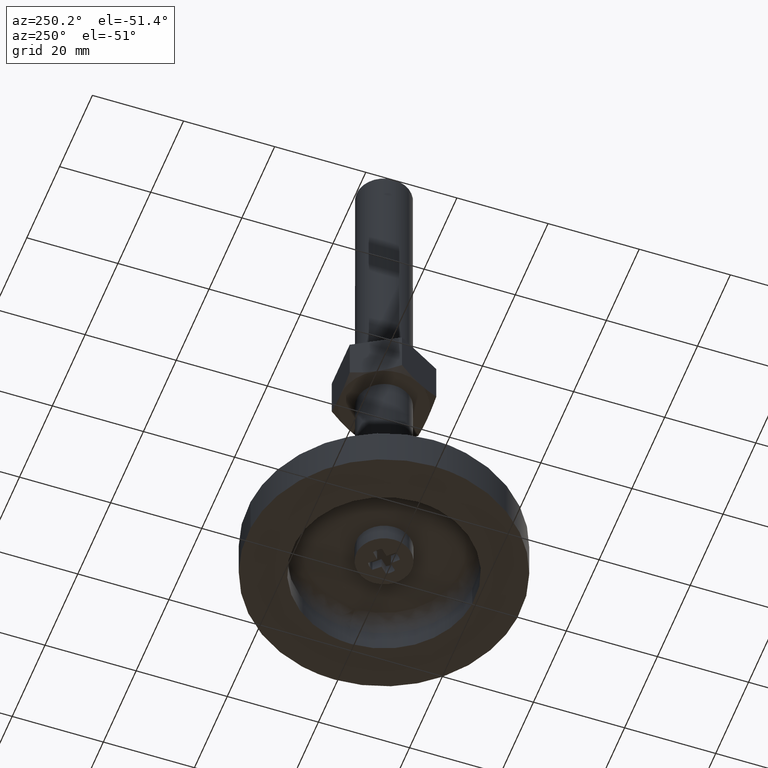
[diagram: clean part render]
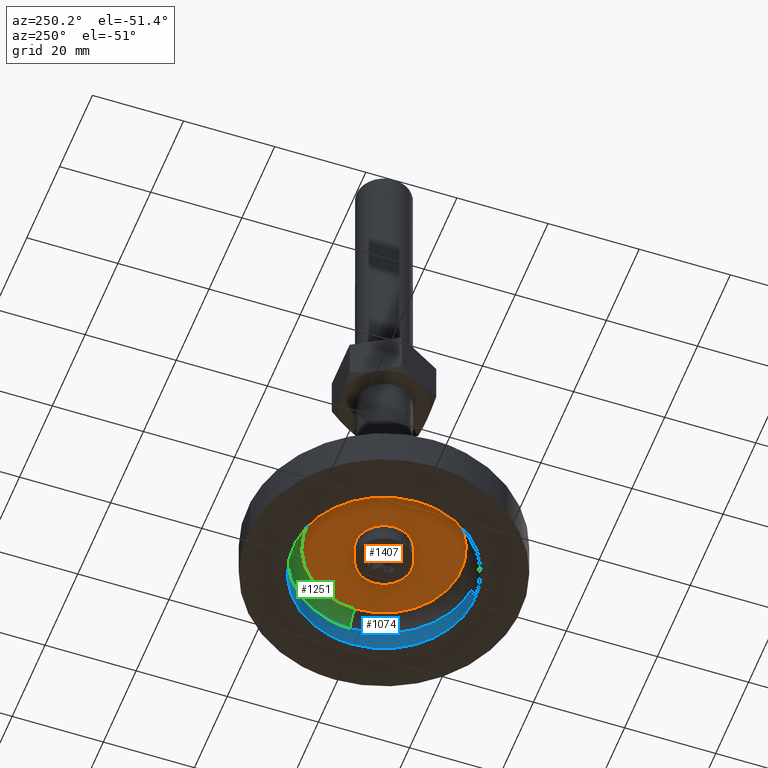
[diagram: same view with three faces highlighted in distinct colors, each labeled with its STEP entity id]
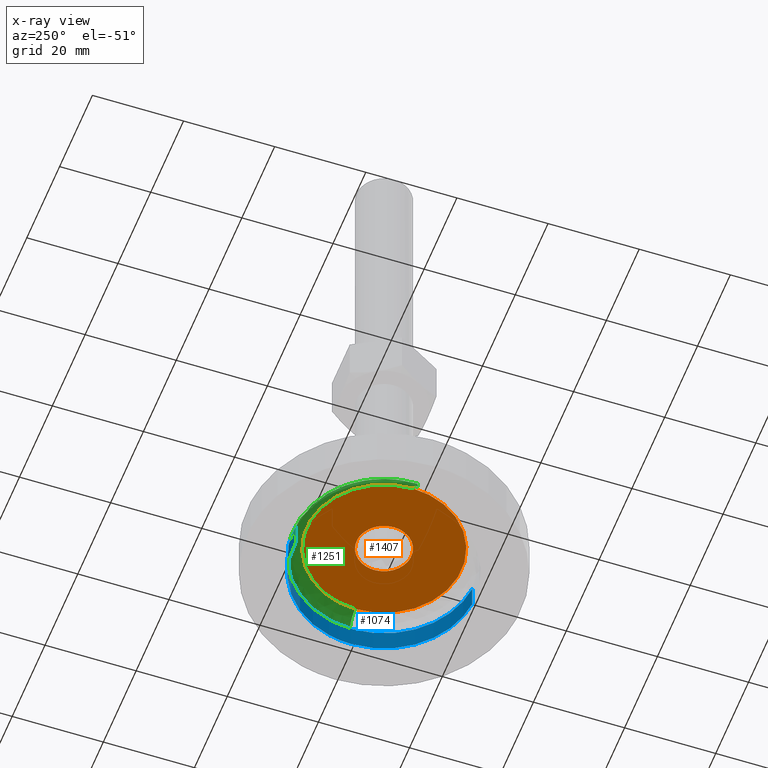
[diagram: x-ray of the same camera — body ghosted, the three highlighted faces saturated]
A machine part, auxiliary view with three faces highlighted in distinct colors.
The next image is the same camera in x-ray (body ghosted, the three faces saturated) — at least one of them is partly hidden behind the body in this view.
Their STEP definitions:

[orange] entity #1407 — the highlighted face is a freeform B-spline surface patch.
#1177=CARTESIAN_POINT('',(16.998657756280039,0.213622678592061,8.0));
#1178=VERTEX_POINT('',#1177);
#1192=CARTESIAN_POINT('',(-17.0,0.0,8.0));
#1193=VERTEX_POINT('',#1192);
#1194=CARTESIAN_POINT('',(-17.0,0.0,8.0));
#1195=CARTESIAN_POINT('',(-17.000105604672711,1.038938880135991,8.000000000000009));
#1196=CARTESIAN_POINT('',(-16.828025025385649,2.908967571575650,7.999999999999919));
#1197=CARTESIAN_POINT('',(-16.210931219974182,5.260018905645230,8.000000000000082));
#1198=CARTESIAN_POINT('',(-15.377275774536949,7.353887868896937,7.999999999999988));
#1199=CARTESIAN_POINT('',(-14.353755285425850,9.208934029262272,7.999999999999948));
#1200=CARTESIAN_POINT('',(-12.796230802875881,11.293580345176570,8.000000000000092));
#1201=CARTESIAN_POINT('',(-11.059292150451460,12.999216577709410,7.999999999999933));
#1202=CARTESIAN_POINT('',(-8.890403058736240,14.559163793837429,8.000000000000046));
#1203=CARTESIAN_POINT('',(-6.609464182957949,15.746463777943321,8.000000000000016));
#1204=CARTESIAN_POINT('',(-4.197493562023425,16.532086340391029,8.000000000000140));
#1205=CARTESIAN_POINT('',(-1.942719425949241,16.929159089066950,7.999999999999769));
#1206=CARTESIAN_POINT('',(0.586208772718293,17.069043883565289,8.000000000000226));
#1207=CARTESIAN_POINT('',(3.112558321656771,16.790388543121789,7.999999999999975));
#1208=CARTESIAN_POINT('',(5.886155361099678,16.017409839924088,7.999999999999903));
#1209=CARTESIAN_POINT('',(7.853591696284147,15.135262488287641,8.000000000000226));
#1210=CARTESIAN_POINT('',(9.918206481521120,13.861111110866331,7.999999999999700));
#1211=CARTESIAN_POINT('',(11.708572758550950,12.427739223383330,8.000000000000183));
#1212=CARTESIAN_POINT('',(13.360222904931449,10.595758974578070,8.000000000000044));
#1213=CARTESIAN_POINT('',(14.807912868469600,8.476386480140745,7.999999999999454));
#1214=CARTESIAN_POINT('',(15.887658645071280,6.255848329929207,8.000000000001419));
#1215=CARTESIAN_POINT('',(16.753102280402899,3.362126566318347,7.999999999997302));
#1216=CARTESIAN_POINT('',(16.984065205234391,1.391004950765484,8.000000000002761));
#1217=CARTESIAN_POINT('',(16.998657756280039,0.213622678592061,8.0));
#1218=B_SPLINE_CURVE_WITH_KNOTS('',3,(#1194,#1195,#1196,#1197,#1198,#1199,#1200,#1201,#1202,#1203,#1204,#1205,#1206,#1207,#1208,#1209,#1210,#1211,#1212,#1213,#1214,#1215,#1216,#1217),.UNSPECIFIED.,.F.,.U.,(4,1,1,1,1,1,1,1,1,1,1,1,1,1,1,1,1,1,1,1,1,4),(0.000000232275013,3.116805700107406,5.610197208325843,7.272512623746181,9.869882290466464,11.947761957658591,15.064589535736870,17.142474158140221,19.947597249655651,22.752768426309579,24.726694496001009,26.804477417362200,30.336870517336411,32.310857669665133,35.427691956956117,36.778314236782649,39.583464325544291,42.284717784370919,44.154816660742092,47.271646587965918,49.661159075049497,53.193529592743893),.UNSPECIFIED.);
#1219=EDGE_CURVE('',#1193,#1178,#1218,.T.);
#1221=CARTESIAN_POINT('',(-16.998657756280039,-0.213622678592057,8.0));
#1222=VERTEX_POINT('',#1221);
#1223=CARTESIAN_POINT('',(-16.998657756280039,-0.213622678592056,8.0));
#1224=CARTESIAN_POINT('',(-17.000000002410811,-0.106815556149688,8.0));
#1225=CARTESIAN_POINT('',(-17.0,0.0,8.0));
#1233=(BOUNDED_CURVE()B_SPLINE_CURVE(2,(#1223,#1224,#1225),.UNSPECIFIED.,.F.,.U.)B_SPLINE_CURVE_WITH_KNOTS((3,3),(0.997784295916405,1.0),.UNSPECIFIED.)CURVE()GEOMETRIC_REPRESENTATION_ITEM()RATIONAL_B_SPLINE_CURVE((0.994854295631762,0.997404141196072,1.0))REPRESENTATION_ITEM(''));
#1234=EDGE_CURVE('',#1222,#1193,#1233,.T.);
#1283=CARTESIAN_POINT('',(17.0,0.0,8.0));
#1284=VERTEX_POINT('',#1283);
#1285=CARTESIAN_POINT('',(17.0,0.0,8.0));
#1286=CARTESIAN_POINT('',(17.000139436908452,-1.108192906138005,7.999999999999995));
#1287=CARTESIAN_POINT('',(16.806283737882620,-3.082113008185723,8.000000000000007));
#1288=CARTESIAN_POINT('',(16.106522939235941,-5.591278196743474,8.000000000000007));
#1289=CARTESIAN_POINT('',(15.126395373659850,-7.888138709253417,7.999999999999980));
#1290=CARTESIAN_POINT('',(13.860626282431010,-9.966778980738532,8.000000000000005));
#1291=CARTESIAN_POINT('',(11.991418760882020,-12.159781957063769,8.000000000000036));
#1292=CARTESIAN_POINT('',(9.836189556051210,-13.974881559590820,7.999999999999905));
#1293=CARTESIAN_POINT('',(7.608038621683763,-15.258506107667840,8.000000000000222));
#1294=CARTESIAN_POINT('',(5.524650213408640,-16.118011658156611,7.999999999999830));
#1295=CARTESIAN_POINT('',(3.286619278757819,-16.750014890639829,8.000000000000252));
#1296=CARTESIAN_POINT('',(0.939297754841939,-17.031466534363130,7.999999999999651));
#1297=CARTESIAN_POINT('',(-1.487614867965952,-16.979911831448032,8.000000000000224));
#1298=CARTESIAN_POINT('',(-3.754837588813800,-16.645408954586401,7.999999999999942));
#1299=CARTESIAN_POINT('',(-6.379242660341415,-15.844487495338649,7.999999999999692));
#1300=CARTESIAN_POINT('',(-8.555871013651283,-14.754368438731730,8.000000000000679));
#1301=CARTESIAN_POINT('',(-10.699211137213670,-13.282405341217560,7.999999999999417));
#1302=CARTESIAN_POINT('',(-12.395246435862891,-11.735897478161700,8.000000000000332));
#1303=CARTESIAN_POINT('',(-14.240105055888661,-9.434220375885243,7.999999999999798));
#1304=CARTESIAN_POINT('',(-15.594014524220780,-6.999980612262529,8.000000000000503));
#1305=CARTESIAN_POINT('',(-16.688278587353029,-3.776856943495612,7.999999999998816));
#1306=CARTESIAN_POINT('',(-16.981983246235721,-1.564155911211339,8.000000000001952));
#1307=CARTESIAN_POINT('',(-16.998657756280039,-0.213622678592057,8.0));
#1308=B_SPLINE_CURVE_WITH_KNOTS('',3,(#1285,#1286,#1287,#1288,#1289,#1290,#1291,#1292,#1293,#1294,#1295,#1296,#1297,#1298,#1299,#1300,#1301,#1302,#1303,#1304,#1305,#1306,#1307),.UNSPECIFIED.,.F.,.U.,(4,1,1,1,1,1,1,1,1,1,1,1,1,1,1,1,1,1,1,1,4),(0.000000232260433,3.324560314812274,5.921914546155591,7.792006181880737,10.804929750579440,13.194491025955870,16.415208231103389,19.220336471628212,20.882631315009760,23.168292284748919,26.181244907533198,27.947305495157138,30.440824413000609,33.038117698147673,36.154960739121947,37.713364142081609,40.830192462621227,43.011980459283564,46.544387155995807,49.141698472185539,53.193529592743857),.UNSPECIFIED.);
#1309=EDGE_CURVE('',#1284,#1222,#1308,.T.);
#1311=CARTESIAN_POINT('',(16.998657756280039,0.213622678592061,8.0));
#1312=CARTESIAN_POINT('',(17.000000002410811,0.106815556149690,8.0));
#1313=CARTESIAN_POINT('',(17.0,0.0,8.0));
#1321=(BOUNDED_CURVE()B_SPLINE_CURVE(2,(#1311,#1312,#1313),.UNSPECIFIED.,.F.,.U.)B_SPLINE_CURVE_WITH_KNOTS((3,3),(0.497784295916405,0.500000000000000),.UNSPECIFIED.)CURVE()GEOMETRIC_REPRESENTATION_ITEM()RATIONAL_B_SPLINE_CURVE((0.994854295631762,0.997404141196072,1.0))REPRESENTATION_ITEM(''));
#1322=EDGE_CURVE('',#1178,#1284,#1321,.T.);
#1330=CARTESIAN_POINT('',(18.698299934101399,-18.697931335615159,8.0));
#1331=CARTESIAN_POINT('',(-18.698300846052469,-18.697931335615159,8.0));
#1332=CARTESIAN_POINT('',(18.698299934101399,18.697932247548248,8.0));
#1333=CARTESIAN_POINT('',(-18.698300846052469,18.697932247548248,8.0));
#1334=B_SPLINE_SURFACE_WITH_KNOTS('',1,1,((#1330,#1332),(#1331,#1333)),.UNSPECIFIED.,.F.,.F.,.U.,(2,2),(2,2),(0.0,37.396600780153868),(0.0,37.395863583163397),.UNSPECIFIED.);
#1335=ORIENTED_EDGE('',*,*,#1219,.T.);
#1336=ORIENTED_EDGE('',*,*,#1322,.T.);
#1337=ORIENTED_EDGE('',*,*,#1309,.T.);
#1338=ORIENTED_EDGE('',*,*,#1234,.T.);
#1339=EDGE_LOOP('',(#1335,#1336,#1337,#1338));
#1340=FACE_OUTER_BOUND('',#1339,.T.);
#1341=CARTESIAN_POINT('',(6.0,0.0,8.0));
#1342=VERTEX_POINT('',#1341);
#1343=CARTESIAN_POINT('',(0.366291237335023,-5.988808790523502,8.0));
#1344=VERTEX_POINT('',#1343);
#1345=CARTESIAN_POINT('',(6.0,0.0,8.0));
#1346=CARTESIAN_POINT('',(6.0,-5.644236401315308,8.0));
#1347=CARTESIAN_POINT('',(0.366291237335024,-5.988808790523503,8.0));
#1355=(BOUNDED_CURVE()B_SPLINE_CURVE(2,(#1345,#1346,#1347),.UNSPECIFIED.,.F.,.U.)B_SPLINE_CURVE_WITH_KNOTS((3,3),(0.500000000000000,0.739332962238341),.UNSPECIFIED.)CURVE()GEOMETRIC_REPRESENTATION_ITEM()RATIONAL_B_SPLINE_CURVE((1.0,0.719603993287415,0.976072041665429))REPRESENTATION_ITEM(''));
#1356=EDGE_CURVE('',#1342,#1344,#1355,.T.);
#1357=ORIENTED_EDGE('',*,*,#1356,.F.);
#1358=CARTESIAN_POINT('',(-0.366291237335024,5.988808790523502,8.0));
#1359=VERTEX_POINT('',#1358);
#1360=CARTESIAN_POINT('',(-0.366291237335024,5.988808790523503,8.0));
#1361=CARTESIAN_POINT('',(-0.183316579854651,6.0,8.0));
#1362=CARTESIAN_POINT('',(0.0,6.0,8.0));
#1363=CARTESIAN_POINT('',(6.0,6.0,8.0));
#1364=CARTESIAN_POINT('',(6.0,0.0,8.0));
#1372=(BOUNDED_CURVE()B_SPLINE_CURVE(2,(#1360,#1361,#1362,#1363,#1364),.UNSPECIFIED.,.F.,.U.)B_SPLINE_CURVE_WITH_KNOTS((3,2,3),(0.239332962238341,0.250000000000000,0.500000000000000),.UNSPECIFIED.)CURVE()GEOMETRIC_REPRESENTATION_ITEM()RATIONAL_B_SPLINE_CURVE((0.976072041665429,0.987502787899133,1.0,0.707106781186548,1.0))REPRESENTATION_ITEM(''));
#1373=EDGE_CURVE('',#1359,#1342,#1372,.T.);
#1374=ORIENTED_EDGE('',*,*,#1373,.F.);
#1375=CARTESIAN_POINT('',(-6.0,0.0,8.0));
#1376=VERTEX_POINT('',#1375);
#1377=CARTESIAN_POINT('',(-6.0,0.0,8.0));
#1378=CARTESIAN_POINT('',(-6.0,5.644236401315308,8.0));
#1379=CARTESIAN_POINT('',(-0.366291237335024,5.988808790523503,8.0));
#1387=(BOUNDED_CURVE()B_SPLINE_CURVE(2,(#1377,#1378,#1379),.UNSPECIFIED.,.F.,.U.)B_SPLINE_CURVE_WITH_KNOTS((3,3),(0.0,0.239332962238341),.UNSPECIFIED.)CURVE()GEOMETRIC_REPRESENTATION_ITEM()RATIONAL_B_SPLINE_CURVE((1.0,0.719603993287415,0.976072041665429))REPRESENTATION_ITEM(''));
#1388=EDGE_CURVE('',#1376,#1359,#1387,.T.);
#1389=ORIENTED_EDGE('',*,*,#1388,.F.);
#1390=CARTESIAN_POINT('',(0.366291237335024,-5.988808790523503,8.0));
#1391=CARTESIAN_POINT('',(0.183316579854651,-6.0,8.0));
#1392=CARTESIAN_POINT('',(0.0,-6.0,8.0));
#1393=CARTESIAN_POINT('',(-6.0,-6.0,8.0));
#1394=CARTESIAN_POINT('',(-6.0,0.0,8.0));
#1402=(BOUNDED_CURVE()B_SPLINE_CURVE(2,(#1390,#1391,#1392,#1393,#1394),.UNSPECIFIED.,.F.,.U.)B_SPLINE_CURVE_WITH_KNOTS((3,2,3),(0.739332962238341,0.750000000000000,1.0),.UNSPECIFIED.)CURVE()GEOMETRIC_REPRESENTATION_ITEM()RATIONAL_B_SPLINE_CURVE((0.976072041665429,0.987502787899133,1.0,0.707106781186548,1.0))REPRESENTATION_ITEM(''));
#1403=EDGE_CURVE('',#1344,#1376,#1402,.T.);
#1404=ORIENTED_EDGE('',*,*,#1403,.F.);
#1405=EDGE_LOOP('',(#1357,#1374,#1389,#1404));
#1406=FACE_BOUND('',#1405,.T.);
#1407=ADVANCED_FACE('',(#1340,#1406),#1334,.T.);

[blue] entity #1074 — the highlighted face is a freeform B-spline surface patch.
#804=CARTESIAN_POINT('',(20.0,0.0,0.0));
#805=VERTEX_POINT('',#804);
#806=CARTESIAN_POINT('',(1.569167726009478,-19.938347791315291,1.942890E-016));
#807=VERTEX_POINT('',#806);
#808=CARTESIAN_POINT('',(20.0,0.0,0.0));
#809=CARTESIAN_POINT('',(19.999999999999797,-18.487823030162009,9.714451E-017));
#810=CARTESIAN_POINT('',(1.569167726009478,-19.938347791315294,1.942890E-016));
#818=(BOUNDED_CURVE()B_SPLINE_CURVE(2,(#808,#809,#810),.UNSPECIFIED.,.F.,.U.)B_SPLINE_CURVE_WITH_KNOTS((3,3),(0.500000000000000,0.736331422622054),.UNSPECIFIED.)CURVE()GEOMETRIC_REPRESENTATION_ITEM()RATIONAL_B_SPLINE_CURVE((1.0,0.723120515685857,0.969723610754290))REPRESENTATION_ITEM(''));
#819=EDGE_CURVE('',#805,#807,#818,.T.);
#821=CARTESIAN_POINT('',(-1.569167726009475,19.938347791315291,1.942890E-016));
#822=VERTEX_POINT('',#821);
#823=CARTESIAN_POINT('',(-1.569167726009476,19.938347791315294,1.942890E-016));
#824=CARTESIAN_POINT('',(-0.785795012957504,19.999999999995044,1.907608E-016));
#825=CARTESIAN_POINT('',(3.822205E-013,19.999999999995140,1.869440E-016));
#826=CARTESIAN_POINT('',(20.000000000000181,19.999999999997666,8.979953E-017));
#827=CARTESIAN_POINT('',(20.0,0.0,0.0));
#835=(BOUNDED_CURVE()B_SPLINE_CURVE(2,(#823,#824,#825,#826,#827),.UNSPECIFIED.,.F.,.U.)B_SPLINE_CURVE_WITH_KNOTS((3,2,3),(0.236331422622054,0.250000000000000,0.500000000000000),.UNSPECIFIED.)CURVE()GEOMETRIC_REPRESENTATION_ITEM()RATIONAL_B_SPLINE_CURVE((0.969723610754290,0.983986265500690,1.0,0.707106781186548,1.0))REPRESENTATION_ITEM(''));
#836=EDGE_CURVE('',#822,#805,#835,.T.);
#993=CARTESIAN_POINT('',(-1.569181914556897,19.938346674662551,5.125000000000324));
#994=CARTESIAN_POINT('',(18.369164760105654,21.507528589219444,5.125000000000325));
#995=CARTESIAN_POINT('',(19.938346674662551,1.569181914556897,5.125000000000324));
#996=CARTESIAN_POINT('',(21.507528589219444,-18.369164760105654,5.125000000000325));
#997=CARTESIAN_POINT('',(1.569181914556897,-19.938346674662551,5.125000000000324));
#998=CARTESIAN_POINT('',(-1.569181914556897,19.938346674662551,-0.128125000000008));
#999=CARTESIAN_POINT('',(18.369164760105654,21.507528589219444,-0.128125000000008));
#1000=CARTESIAN_POINT('',(19.938346674662551,1.569181914556897,-0.128125000000008));
#1001=CARTESIAN_POINT('',(21.507528589219444,-18.369164760105654,-0.128125000000008));
#1002=CARTESIAN_POINT('',(1.569181914556897,-19.938346674662551,-0.128125000000008));
#1010=(BOUNDED_SURFACE()B_SPLINE_SURFACE(2,1,((#993,#998),(#994,#999),(#995,#1000),(#996,#1001),(#997,#1002)),.UNSPECIFIED.,.F.,.F.,.U.)B_SPLINE_SURFACE_WITH_KNOTS((3,2,3),(2,2),(0.0,33.137084989847587,66.274169979695188),(0.0,5.253125000000332),.UNSPECIFIED.)GEOMETRIC_REPRESENTATION_ITEM()RATIONAL_B_SPLINE_SURFACE(((1.0,1.0),(0.707106781186548,0.707106781186548),(1.0,1.0),(0.707106781186548,0.707106781186548),(1.0,1.0)))REPRESENTATION_ITEM('')SURFACE());
#1011=CARTESIAN_POINT('',(-1.569167552753556,19.938347804950588,5.000000000000377));
#1012=VERTEX_POINT('',#1011);
#1013=CARTESIAN_POINT('',(19.998420884075191,0.251320797757362,5.000000000000316));
#1014=VERTEX_POINT('',#1013);
#1015=CARTESIAN_POINT('',(-1.569167552753556,19.938347804950588,5.000000000000377));
#1016=CARTESIAN_POINT('',(-0.785794925927533,19.999999999994916,5.000000000000375));
#1017=CARTESIAN_POINT('',(3.942101E-013,19.999999999995019,5.000000000000373));
#1018=CARTESIAN_POINT('',(19.750238598057273,19.999999999997602,5.000000000000343));
#1019=CARTESIAN_POINT('',(19.998420884075188,0.251320797757362,5.000000000000316));
#1027=(BOUNDED_CURVE()B_SPLINE_CURVE(2,(#1015,#1016,#1017,#1018,#1019),.UNSPECIFIED.,.F.,.U.)B_SPLINE_CURVE_WITH_KNOTS((3,2,3),(0.236331424111661,0.250000000000000,0.497784295920934),.UNSPECIFIED.)CURVE()GEOMETRIC_REPRESENTATION_ITEM()RATIONAL_B_SPLINE_CURVE((0.969723613862991,0.983986267245874,1.0,0.709702639985171,0.994854295642184))REPRESENTATION_ITEM(''));
#1028=EDGE_CURVE('',#1012,#1014,#1027,.T.);
#1029=ORIENTED_EDGE('',*,*,#1028,.F.);
#1030=CARTESIAN_POINT('',(-1.569167552753556,19.938347804950588,5.000000000000377));
#1031=CARTESIAN_POINT('',(-1.569167726009475,19.938347791315291,1.942890E-016));
#1032=QUASI_UNIFORM_CURVE('',1,(#1030,#1031),.UNSPECIFIED.,.F.,.U.);
#1033=EDGE_CURVE('',#1012,#822,#1032,.T.);
#1034=ORIENTED_EDGE('',*,*,#1033,.T.);
#1035=ORIENTED_EDGE('',*,*,#836,.T.);
#1036=ORIENTED_EDGE('',*,*,#819,.T.);
#1037=CARTESIAN_POINT('',(1.569167552753556,-19.938347804950588,5.000000000000377));
#1038=VERTEX_POINT('',#1037);
#1039=CARTESIAN_POINT('',(1.569167552753556,-19.938347804950588,5.000000000000377));
#1040=CARTESIAN_POINT('',(1.569167726009478,-19.938347791315291,1.942890E-016));
#1041=QUASI_UNIFORM_CURVE('',1,(#1039,#1040),.UNSPECIFIED.,.F.,.U.);
#1042=EDGE_CURVE('',#1038,#807,#1041,.T.);
#1043=ORIENTED_EDGE('',*,*,#1042,.F.);
#1044=CARTESIAN_POINT('',(20.0,0.0,5.0));
#1045=VERTEX_POINT('',#1044);
#1046=CARTESIAN_POINT('',(20.0,0.0,5.0));
#1047=CARTESIAN_POINT('',(19.999999999999794,-18.487823191310156,5.000000000000189));
#1048=CARTESIAN_POINT('',(1.569167552753556,-19.938347804950588,5.000000000000377));
#1056=(BOUNDED_CURVE()B_SPLINE_CURVE(2,(#1046,#1047,#1048),.UNSPECIFIED.,.F.,.U.)B_SPLINE_CURVE_WITH_KNOTS((3,3),(0.500000000000000,0.736331424111661),.UNSPECIFIED.)CURVE()GEOMETRIC_REPRESENTATION_ITEM()RATIONAL_B_SPLINE_CURVE((1.0,0.723120513940673,0.969723613862991))REPRESENTATION_ITEM(''));
#1057=EDGE_CURVE('',#1045,#1038,#1056,.T.);
#1058=ORIENTED_EDGE('',*,*,#1057,.F.);
#1059=CARTESIAN_POINT('',(19.998420884075188,0.251320797757362,5.000000000000316));
#1060=CARTESIAN_POINT('',(20.0,0.125665359882956,5.0));
#1061=CARTESIAN_POINT('',(20.0,0.0,5.0));
#1069=(BOUNDED_CURVE()B_SPLINE_CURVE(2,(#1059,#1060,#1061),.UNSPECIFIED.,.F.,.U.)B_SPLINE_CURVE_WITH_KNOTS((3,3),(0.497784295920934,0.500000000000000),.UNSPECIFIED.)CURVE()GEOMETRIC_REPRESENTATION_ITEM()RATIONAL_B_SPLINE_CURVE((0.994854295642184,0.997404141201377,1.0))REPRESENTATION_ITEM(''));
#1070=EDGE_CURVE('',#1014,#1045,#1069,.T.);
#1071=ORIENTED_EDGE('',*,*,#1070,.F.);
#1072=EDGE_LOOP('',(#1029,#1034,#1035,#1036,#1043,#1058,#1071));
#1073=FACE_OUTER_BOUND('',#1072,.T.);
#1074=ADVANCED_FACE('',(#1073),#1010,.F.);

[green] entity #1251 — the highlighted face is a freeform B-spline surface patch.
#1011=CARTESIAN_POINT('',(-1.569167552753556,19.938347804950588,5.000000000000377));
#1012=VERTEX_POINT('',#1011);
#1013=CARTESIAN_POINT('',(19.998420884075191,0.251320797757362,5.000000000000316));
#1014=VERTEX_POINT('',#1013);
#1015=CARTESIAN_POINT('',(-1.569167552753556,19.938347804950588,5.000000000000377));
#1016=CARTESIAN_POINT('',(-0.785794925927533,19.999999999994916,5.000000000000375));
#1017=CARTESIAN_POINT('',(3.942101E-013,19.999999999995019,5.000000000000373));
#1018=CARTESIAN_POINT('',(19.750238598057273,19.999999999997602,5.000000000000343));
#1019=CARTESIAN_POINT('',(19.998420884075188,0.251320797757362,5.000000000000316));
#1027=(BOUNDED_CURVE()B_SPLINE_CURVE(2,(#1015,#1016,#1017,#1018,#1019),.UNSPECIFIED.,.F.,.U.)B_SPLINE_CURVE_WITH_KNOTS((3,2,3),(0.236331424111661,0.250000000000000,0.497784295920934),.UNSPECIFIED.)CURVE()GEOMETRIC_REPRESENTATION_ITEM()RATIONAL_B_SPLINE_CURVE((0.969723613862991,0.983986267245874,1.0,0.709702639985171,0.994854295642184))REPRESENTATION_ITEM(''));
#1028=EDGE_CURVE('',#1012,#1014,#1027,.T.);
#1093=CARTESIAN_POINT('',(-20.0,0.0,5.0));
#1094=VERTEX_POINT('',#1093);
#1095=CARTESIAN_POINT('',(-20.0,0.0,5.0));
#1096=CARTESIAN_POINT('',(-19.999999999999794,18.487823191310156,5.000000000000187));
#1097=CARTESIAN_POINT('',(-1.569167552753556,19.938347804950588,5.000000000000377));
#1105=(BOUNDED_CURVE()B_SPLINE_CURVE(2,(#1095,#1096,#1097),.UNSPECIFIED.,.F.,.U.)B_SPLINE_CURVE_WITH_KNOTS((3,3),(0.0,0.236331424111661),.UNSPECIFIED.)CURVE()GEOMETRIC_REPRESENTATION_ITEM()RATIONAL_B_SPLINE_CURVE((1.0,0.723120513940673,0.969723613862991))REPRESENTATION_ITEM(''));
#1106=EDGE_CURVE('',#1094,#1012,#1105,.T.);
#1108=CARTESIAN_POINT('',(-19.998420884075191,-0.251320797757367,5.000000000000316));
#1109=VERTEX_POINT('',#1108);
#1110=CARTESIAN_POINT('',(-19.998420884075188,-0.251320797757367,5.000000000000316));
#1111=CARTESIAN_POINT('',(-20.0,-0.125665359882956,5.0));
#1112=CARTESIAN_POINT('',(-20.0,0.0,5.0));
#1120=(BOUNDED_CURVE()B_SPLINE_CURVE(2,(#1110,#1111,#1112),.UNSPECIFIED.,.F.,.U.)B_SPLINE_CURVE_WITH_KNOTS((3,3),(0.997784295920934,1.0),.UNSPECIFIED.)CURVE()GEOMETRIC_REPRESENTATION_ITEM()RATIONAL_B_SPLINE_CURVE((0.994854295642184,0.997404141201377,1.0))REPRESENTATION_ITEM(''));
#1121=EDGE_CURVE('',#1109,#1094,#1120,.T.);
#1145=CARTESIAN_POINT('',(-16.784163988320593,-0.680396644449069,7.992738096477130));
#1146=CARTESIAN_POINT('',(-16.787096264881153,-0.447065772706233,7.992738096477130));
#1147=CARTESIAN_POINT('',(-17.001064154956094,16.579061635441057,7.992738096477130));
#1148=CARTESIAN_POINT('',(-0.211001259757515,16.790062895198570,7.992738096477130));
#1149=CARTESIAN_POINT('',(16.579061635441057,17.001064154956094,7.992738096477130));
#1150=CARTESIAN_POINT('',(16.793029525512363,-0.025063252902597,7.992738096477130));
#1151=CARTESIAN_POINT('',(16.795961802069392,-0.258394124363493,7.992738096477129));
#1152=CARTESIAN_POINT('',(-20.223906212774590,-0.819836956693209,8.232611430909149));
#1153=CARTESIAN_POINT('',(-20.227439429334680,-0.538687316475459,8.232611430909151));
#1154=CARTESIAN_POINT('',(-20.485257843432141,19.976770236771166,8.232611430909152));
#1155=CARTESIAN_POINT('',(-0.254243803330490,20.231014040101652,8.232611430909151));
#1156=CARTESIAN_POINT('',(19.976770236771159,20.485257843432141,8.232611430909152));
#1157=CARTESIAN_POINT('',(20.234588650864268,-0.030199709466727,8.232611430909151));
#1158=CARTESIAN_POINT('',(20.238121867420098,-0.311349349344756,8.232611430909149));
#1159=CARTESIAN_POINT('',(-19.984135989565651,-0.810117148460658,4.791388588279427));
#1160=CARTESIAN_POINT('',(-19.987627317080459,-0.532300757086177,4.791388588279428));
#1161=CARTESIAN_POINT('',(-20.242389092265292,19.739930003817619,4.791388588279428));
#1162=CARTESIAN_POINT('',(-0.251229544223833,19.991159548041452,4.791388588279428));
#1163=CARTESIAN_POINT('',(19.739930003817619,20.242389092265292,4.791388588279428));
#1164=CARTESIAN_POINT('',(19.994691778998135,-0.029841668294883,4.791388588279428));
#1165=CARTESIAN_POINT('',(19.998183106508723,-0.307658059333670,4.791388588279429));
#1173=(BOUNDED_SURFACE()B_SPLINE_SURFACE(2,2,((#1145,#1152,#1159),(#1146,#1153,#1160),(#1147,#1154,#1161),(#1148,#1155,#1162),(#1149,#1156,#1163),(#1150,#1157,#1164),(#1151,#1158,#1165)),.UNSPECIFIED.,.F.,.F.,.U.)B_SPLINE_SURFACE_WITH_KNOTS((3,1,2,1,3),(3,3),(0.0,0.662501062002764,33.787554126393772,66.912607190784755,67.575108251972821),(0.0,5.468189979762788),.UNSPECIFIED.)GEOMETRIC_REPRESENTATION_ITEM()RATIONAL_B_SPLINE_SURFACE(((0.921146729416461,0.604479481459989,0.921146741249094),(0.915813262253729,0.600979527150914,0.915813274017851),(0.643806437242182,0.422481857576905,0.643806445512228),(0.910479795090997,0.597479572841838,0.910479806786608),(0.643806437242182,0.422481857576905,0.643806445512228),(0.915813262247170,0.600979527146610,0.915813274011292),(0.921146729403343,0.604479481451381,0.921146741235977)))REPRESENTATION_ITEM('')SURFACE());
#1174=ORIENTED_EDGE('',*,*,#1121,.T.);
#1175=ORIENTED_EDGE('',*,*,#1106,.T.);
#1176=ORIENTED_EDGE('',*,*,#1028,.T.);
#1177=CARTESIAN_POINT('',(16.998657756280039,0.213622678592061,8.0));
#1178=VERTEX_POINT('',#1177);
#1179=CARTESIAN_POINT('',(16.998657756280046,0.213622678592061,8.0));
#1180=CARTESIAN_POINT('',(19.998420884072200,0.251320797969439,7.999999995177984));
#1181=CARTESIAN_POINT('',(19.998420884075180,0.251320797757362,5.000000000000316));
#1189=(BOUNDED_CURVE()B_SPLINE_CURVE(2,(#1179,#1180,#1181),.UNSPECIFIED.,.F.,.U.)B_SPLINE_CURVE_WITH_KNOTS((3,3),(-1.725134641633497,-0.274865356718293),.UNSPECIFIED.)CURVE()GEOMETRIC_REPRESENTATION_ITEM()RATIONAL_B_SPLINE_CURVE((0.883342149064947,0.624617224421656,0.883342149653021))REPRESENTATION_ITEM(''));
#1190=EDGE_CURVE('',#1178,#1014,#1189,.T.);
#1191=ORIENTED_EDGE('',*,*,#1190,.F.);
#1192=CARTESIAN_POINT('',(-17.0,0.0,8.0));
#1193=VERTEX_POINT('',#1192);
#1194=CARTESIAN_POINT('',(-17.0,0.0,8.0));
#1195=CARTESIAN_POINT('',(-17.000105604672711,1.038938880135991,8.000000000000009));
#1196=CARTESIAN_POINT('',(-16.828025025385649,2.908967571575650,7.999999999999919));
#1197=CARTESIAN_POINT('',(-16.210931219974182,5.260018905645230,8.000000000000082));
#1198=CARTESIAN_POINT('',(-15.377275774536949,7.353887868896937,7.999999999999988));
#1199=CARTESIAN_POINT('',(-14.353755285425850,9.208934029262272,7.999999999999948));
#1200=CARTESIAN_POINT('',(-12.796230802875881,11.293580345176570,8.000000000000092));
#1201=CARTESIAN_POINT('',(-11.059292150451460,12.999216577709410,7.999999999999933));
#1202=CARTESIAN_POINT('',(-8.890403058736240,14.559163793837429,8.000000000000046));
#1203=CARTESIAN_POINT('',(-6.609464182957949,15.746463777943321,8.000000000000016));
#1204=CARTESIAN_POINT('',(-4.197493562023425,16.532086340391029,8.000000000000140));
#1205=CARTESIAN_POINT('',(-1.942719425949241,16.929159089066950,7.999999999999769));
#1206=CARTESIAN_POINT('',(0.586208772718293,17.069043883565289,8.000000000000226));
#1207=CARTESIAN_POINT('',(3.112558321656771,16.790388543121789,7.999999999999975));
#1208=CARTESIAN_POINT('',(5.886155361099678,16.017409839924088,7.999999999999903));
#1209=CARTESIAN_POINT('',(7.853591696284147,15.135262488287641,8.000000000000226));
#1210=CARTESIAN_POINT('',(9.918206481521120,13.861111110866331,7.999999999999700));
#1211=CARTESIAN_POINT('',(11.708572758550950,12.427739223383330,8.000000000000183));
#1212=CARTESIAN_POINT('',(13.360222904931449,10.595758974578070,8.000000000000044));
#1213=CARTESIAN_POINT('',(14.807912868469600,8.476386480140745,7.999999999999454));
#1214=CARTESIAN_POINT('',(15.887658645071280,6.255848329929207,8.000000000001419));
#1215=CARTESIAN_POINT('',(16.753102280402899,3.362126566318347,7.999999999997302));
#1216=CARTESIAN_POINT('',(16.984065205234391,1.391004950765484,8.000000000002761));
#1217=CARTESIAN_POINT('',(16.998657756280039,0.213622678592061,8.0));
#1218=B_SPLINE_CURVE_WITH_KNOTS('',3,(#1194,#1195,#1196,#1197,#1198,#1199,#1200,#1201,#1202,#1203,#1204,#1205,#1206,#1207,#1208,#1209,#1210,#1211,#1212,#1213,#1214,#1215,#1216,#1217),.UNSPECIFIED.,.F.,.U.,(4,1,1,1,1,1,1,1,1,1,1,1,1,1,1,1,1,1,1,1,1,4),(0.000000232275013,3.116805700107406,5.610197208325843,7.272512623746181,9.869882290466464,11.947761957658591,15.064589535736870,17.142474158140221,19.947597249655651,22.752768426309579,24.726694496001009,26.804477417362200,30.336870517336411,32.310857669665133,35.427691956956117,36.778314236782649,39.583464325544291,42.284717784370919,44.154816660742092,47.271646587965918,49.661159075049497,53.193529592743893),.UNSPECIFIED.);
#1219=EDGE_CURVE('',#1193,#1178,#1218,.T.);
#1220=ORIENTED_EDGE('',*,*,#1219,.F.);
#1221=CARTESIAN_POINT('',(-16.998657756280039,-0.213622678592057,8.0));
#1222=VERTEX_POINT('',#1221);
#1223=CARTESIAN_POINT('',(-16.998657756280039,-0.213622678592056,8.0));
#1224=CARTESIAN_POINT('',(-17.000000002410811,-0.106815556149688,8.0));
#1225=CARTESIAN_POINT('',(-17.0,0.0,8.0));
#1233=(BOUNDED_CURVE()B_SPLINE_CURVE(2,(#1223,#1224,#1225),.UNSPECIFIED.,.F.,.U.)B_SPLINE_CURVE_WITH_KNOTS((3,3),(0.997784295916405,1.0),.UNSPECIFIED.)CURVE()GEOMETRIC_REPRESENTATION_ITEM()RATIONAL_B_SPLINE_CURVE((0.994854295631762,0.997404141196072,1.0))REPRESENTATION_ITEM(''));
#1234=EDGE_CURVE('',#1222,#1193,#1233,.T.);
#1235=ORIENTED_EDGE('',*,*,#1234,.F.);
#1236=CARTESIAN_POINT('',(-16.998657756280036,-0.213622678592057,8.0));
#1237=CARTESIAN_POINT('',(-19.998420884072207,-0.251320797969439,7.999999995177987));
#1238=CARTESIAN_POINT('',(-19.998420884075184,-0.251320797757367,5.000000000000316));
#1246=(BOUNDED_CURVE()B_SPLINE_CURVE(2,(#1236,#1237,#1238),.UNSPECIFIED.,.F.,.U.)B_SPLINE_CURVE_WITH_KNOTS((3,3),(-1.725134641633498,-0.274865356718294),.UNSPECIFIED.)CURVE()GEOMETRIC_REPRESENTATION_ITEM()RATIONAL_B_SPLINE_CURVE((0.883342149064947,0.624617224421656,0.883342149653021))REPRESENTATION_ITEM(''));
#1247=EDGE_CURVE('',#1222,#1109,#1246,.T.);
#1248=ORIENTED_EDGE('',*,*,#1247,.T.);
#1249=EDGE_LOOP('',(#1174,#1175,#1176,#1191,#1220,#1235,#1248));
#1250=FACE_OUTER_BOUND('',#1249,.T.);
#1251=ADVANCED_FACE('',(#1250),#1173,.F.);